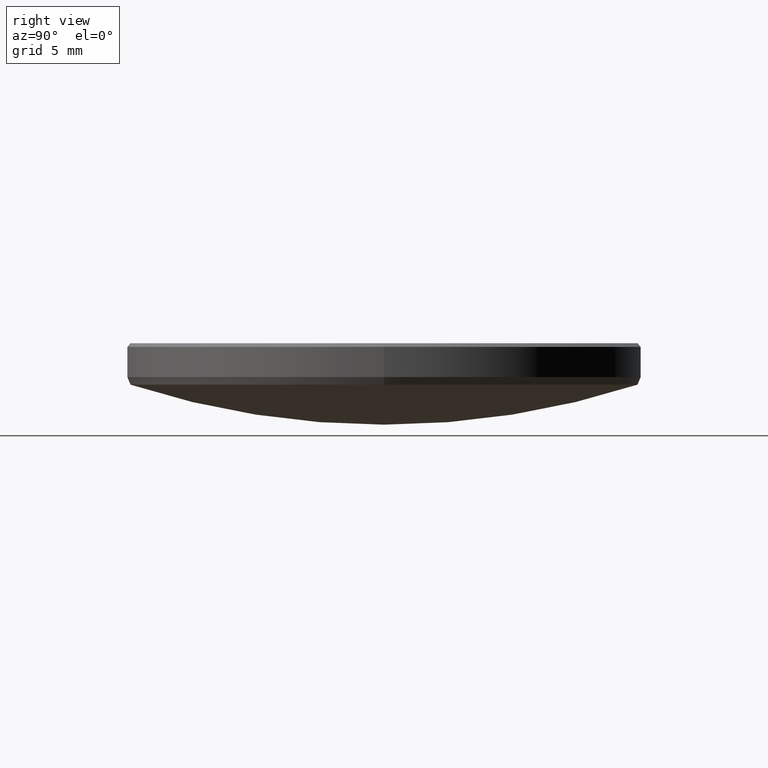
[diagram: clean part render]
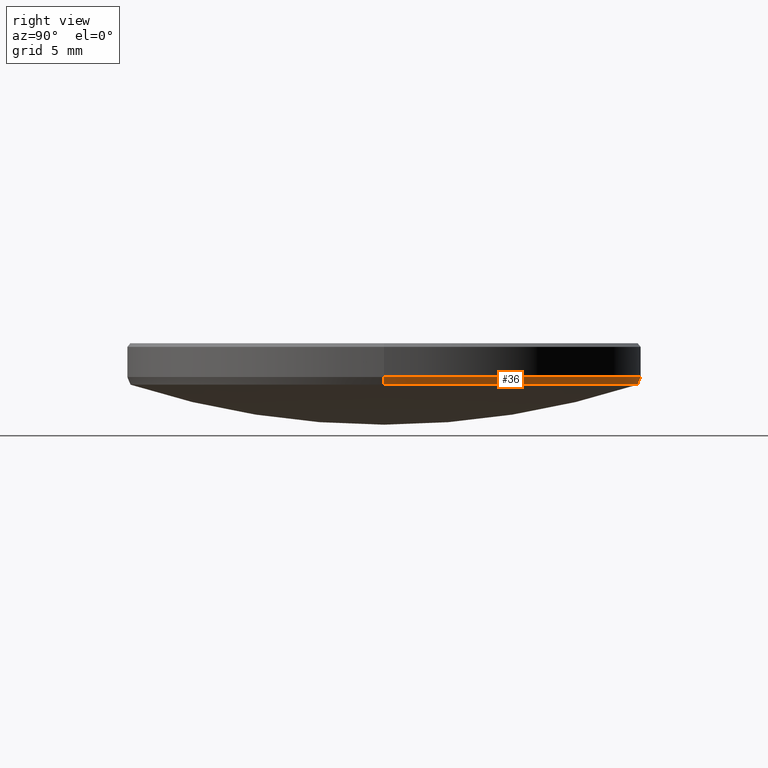
[diagram: same view with one face highlighted and labeled with its STEP entity id]
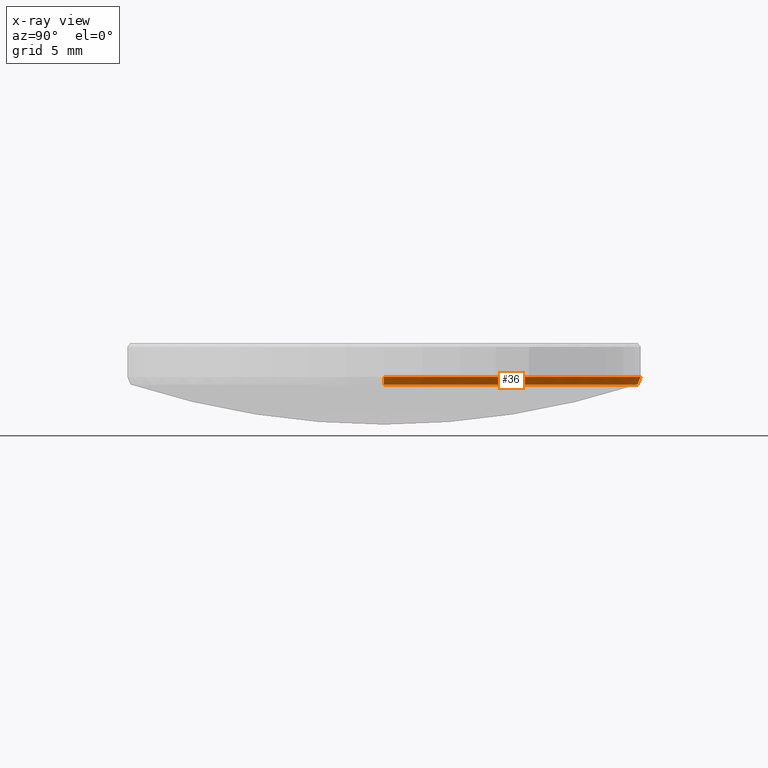
[diagram: x-ray of the same camera — body ghosted, the highlighted face saturated]
A machine part, right view. The second image highlights one B-rep face of the part: STEP entity #36.
The next image is the same camera in x-ray: the body ghosted, the highlighted face saturated — about 0% of this face is hidden behind the body in this view.
In plain terms, the highlighted conical surface has half-angle 26.771 deg.
Its self-contained STEP definition (entity closure, byte-faithful):
#10 = DIRECTION ( 'NONE',  ( 1.000000000000000000, 0.000000000000000000, 0.000000000000000000 ) ) ;
#30 = ORIENTED_EDGE ( 'NONE', *, *, #79, .F. ) ;
#33 = DIRECTION ( 'NONE',  ( 0.000000000000000000, 0.000000000000000000, -1.000000000000000000 ) ) ;
#36 = ADVANCED_FACE ( 'NONE', ( #231 ), #131, .T. ) ;
#45 = CARTESIAN_POINT ( 'NONE',  ( 12.69999999999999929, 1.555301434917138433E-15, 4.313967534857077624 ) ) ;
#55 = EDGE_CURVE ( 'NONE', #114, #309, #101, .T. ) ;
#69 = DIRECTION ( 'NONE',  ( -1.000000000000000000, 0.000000000000000000, 0.000000000000000000 ) ) ;
#74 = ORIENTED_EDGE ( 'NONE', *, *, #109, .T. ) ;
#79 = EDGE_CURVE ( 'NONE', #197, #114, #128, .T. ) ;
#84 = ORIENTED_EDGE ( 'NONE', *, *, #250, .F. ) ;
#91 = EDGE_LOOP ( 'NONE', ( #30, #74, #84, #201, #116 ) ) ;
#93 = CARTESIAN_POINT ( 'NONE',  ( -12.51034897911231170, 1.543688659132881617E-15, 3.938057364562333351 ) ) ;
#95 = LINE ( 'NONE', #247, #317 ) ;
#101 = CIRCLE ( 'NONE', #328, 12.51034897911231170 ) ;
#104 = DIRECTION ( 'NONE',  ( 1.000000000000000000, 0.000000000000000000, 0.000000000000000000 ) ) ;
#109 = EDGE_CURVE ( 'NONE', #197, #143, #112, .T. ) ;
#112 = LINE ( 'NONE', #190, #198 ) ;
#114 = VERTEX_POINT ( 'NONE', #115 ) ;
#115 = CARTESIAN_POINT ( 'NONE',  ( 0.000000000000000000, 12.51034897911230992, 3.938057364562333351 ) ) ;
#116 = ORIENTED_EDGE ( 'NONE', *, *, #55, .F. ) ;
#128 = CIRCLE ( 'NONE', #185, 12.51034897911231170 ) ;
#129 = DIRECTION ( 'NONE',  ( 1.000000000000000000, 0.000000000000000000, 0.000000000000000000 ) ) ;
#131 = CONICAL_SURFACE ( 'NONE', #251, 12.69999999999999929, 0.4672503280471582698 ) ;
#143 = VERTEX_POINT ( 'NONE', #241 ) ;
#144 = AXIS2_PLACEMENT_3D ( 'NONE', #323, #300, #69 ) ;
#155 = CARTESIAN_POINT ( 'NONE',  ( 0.000000000000000000, 0.000000000000000000, 3.938057364562333351 ) ) ;
#157 = DIRECTION ( 'NONE',  ( 0.000000000000000000, 0.000000000000000000, -1.000000000000000000 ) ) ;
#185 = AXIS2_PLACEMENT_3D ( 'NONE', #236, #33, #10 ) ;
#190 = CARTESIAN_POINT ( 'NONE',  ( -12.69999999999999929, 1.555301434917138433E-15, 4.313967534857077624 ) ) ;
#194 = VERTEX_POINT ( 'NONE', #45 ) ;
#197 = VERTEX_POINT ( 'NONE', #93 ) ;
#198 = VECTOR ( 'NONE', #287, 1000.000000000000114 ) ;
#201 = ORIENTED_EDGE ( 'NONE', *, *, #259, .F. ) ;
#231 = FACE_OUTER_BOUND ( 'NONE', #91, .T. ) ;
#236 = CARTESIAN_POINT ( 'NONE',  ( 0.000000000000000000, 0.000000000000000000, 3.938057364562333351 ) ) ;
#240 = CIRCLE ( 'NONE', #144, 12.69999999999999929 ) ;
#241 = CARTESIAN_POINT ( 'NONE',  ( -12.69999999999999929, 0.000000000000000000, 4.313967534857077624 ) ) ;
#244 = DIRECTION ( 'NONE',  ( 0.4504330560855231425, 0.000000000000000000, 0.8928102049066508616 ) ) ;
#247 = CARTESIAN_POINT ( 'NONE',  ( 12.69999999999999929, 0.000000000000000000, 4.313967534857077624 ) ) ;
#250 = EDGE_CURVE ( 'NONE', #194, #143, #240, .T. ) ;
#251 = AXIS2_PLACEMENT_3D ( 'NONE', #282, #332, #104 ) ;
#259 = EDGE_CURVE ( 'NONE', #309, #194, #95, .T. ) ;
#282 = CARTESIAN_POINT ( 'NONE',  ( 0.000000000000000000, 0.000000000000000000, 4.313967534857077624 ) ) ;
#287 = DIRECTION ( 'NONE',  ( -0.4504330560855231425, 5.516214003652961775E-17, 0.8928102049066508616 ) ) ;
#300 = DIRECTION ( 'NONE',  ( -0.000000000000000000, -0.000000000000000000, 1.000000000000000000 ) ) ;
#309 = VERTEX_POINT ( 'NONE', #320 ) ;
#317 = VECTOR ( 'NONE', #244, 1000.000000000000114 ) ;
#320 = CARTESIAN_POINT ( 'NONE',  ( 12.51034897911231170, 0.000000000000000000, 3.938057364562333351 ) ) ;
#323 = CARTESIAN_POINT ( 'NONE',  ( 0.000000000000000000, 0.000000000000000000, 4.313967534857077624 ) ) ;
#328 = AXIS2_PLACEMENT_3D ( 'NONE', #155, #157, #129 ) ;
#332 = DIRECTION ( 'NONE',  ( -0.000000000000000000, -0.000000000000000000, 1.000000000000000000 ) ) ;